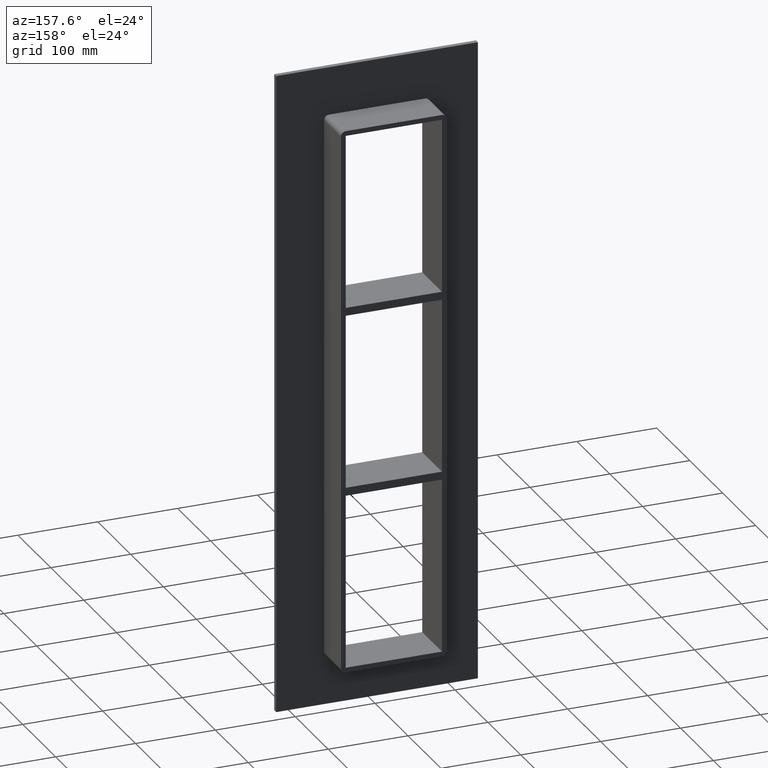
[diagram: clean part render]
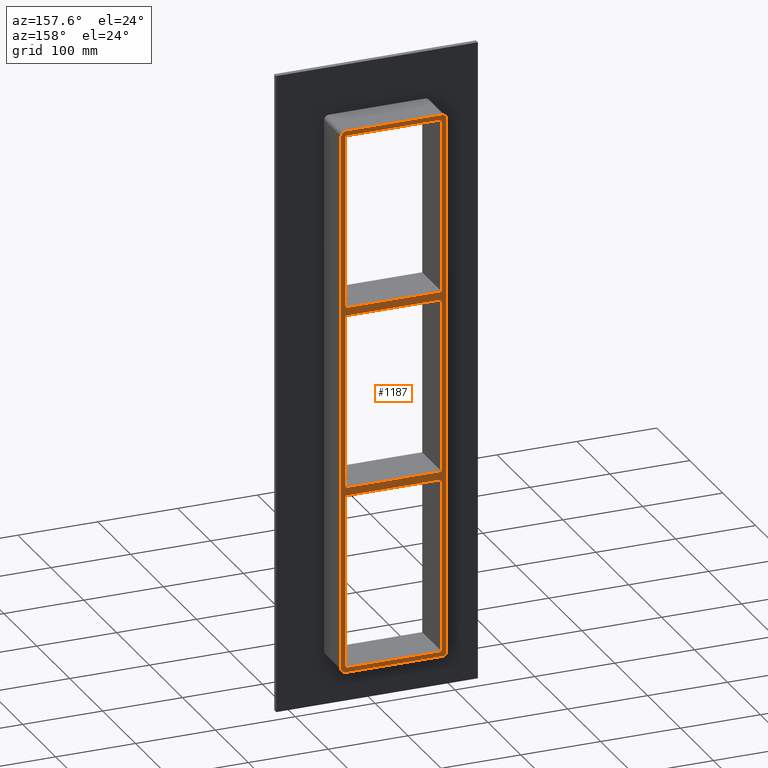
[diagram: same view with one face highlighted and labeled with its STEP entity id]
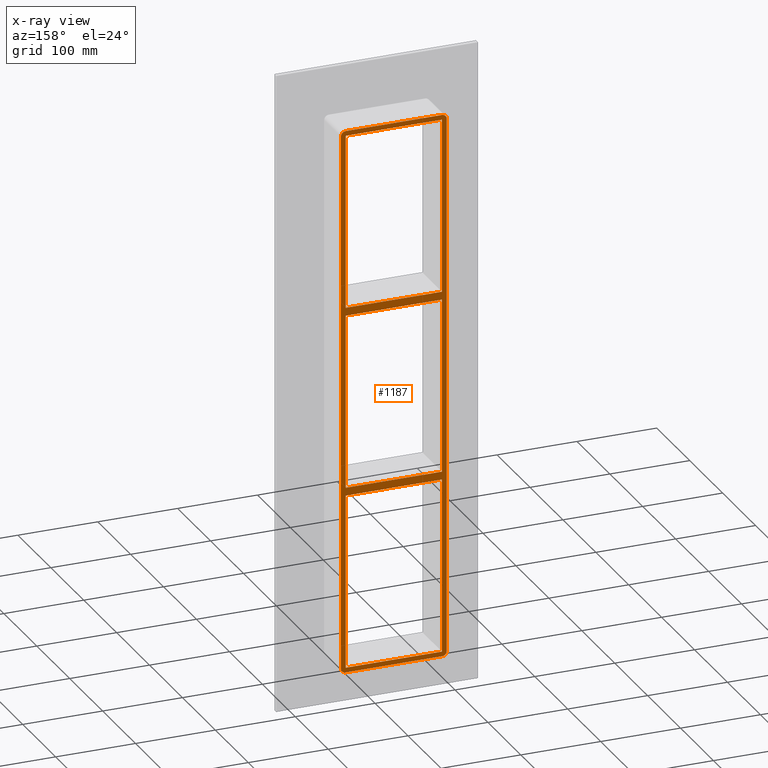
[diagram: x-ray of the same camera — body ghosted, the highlighted face saturated]
A machine part, auxiliary view. The second image highlights one B-rep face of the part: STEP entity #1187.
The next image is the same camera in x-ray: the body ghosted, the highlighted face saturated — about 0% of this face is hidden behind the body in this view.
In plain terms, the highlighted planar face has unit normal (0, 1, 0).
Its self-contained STEP definition (entity closure, byte-faithful):
#83=CARTESIAN_POINT('',(-60.249999999999666,57.0,108.99999999999056));
#84=VERTEX_POINT('',#83);
#91=CARTESIAN_POINT('',(60.249999999996362,57.0,108.99999999999062));
#92=VERTEX_POINT('',#91);
#93=CARTESIAN_POINT('',(60.249999999996362,57.0,108.99999999999062));
#94=DIRECTION('',(-1.0,0.0,0.0));
#95=VECTOR('',#94,120.49999999999602);
#96=LINE('',#93,#95);
#97=EDGE_CURVE('',#92,#84,#96,.T.);
#123=CARTESIAN_POINT('',(60.249999999999879,57.0,118.99999999999994));
#124=VERTEX_POINT('',#123);
#131=CARTESIAN_POINT('',(-60.249999999999666,57.0,118.99999999999994));
#132=VERTEX_POINT('',#131);
#133=CARTESIAN_POINT('',(-60.249999999999666,57.0,118.99999999999994));
#134=DIRECTION('',(1.0,0.0,0.0));
#135=VECTOR('',#134,120.49999999999955);
#136=LINE('',#133,#135);
#137=EDGE_CURVE('',#132,#124,#136,.T.);
#154=CARTESIAN_POINT('',(-60.249999999999986,57.0,337.0));
#155=VERTEX_POINT('',#154);
#156=CARTESIAN_POINT('',(-60.249999999999993,57.0,337.0));
#157=DIRECTION('',(0.0,0.0,-1.0));
#158=VECTOR('',#157,218.00000000000003);
#159=LINE('',#156,#158);
#160=EDGE_CURVE('',#155,#132,#159,.T.);
#185=CARTESIAN_POINT('',(60.249999999999879,57.0,-109.00000000000006));
#186=VERTEX_POINT('',#185);
#187=CARTESIAN_POINT('',(60.249999999999986,57.0,-109.00000000000006));
#188=DIRECTION('',(0.0,0.0,1.0));
#189=VECTOR('',#188,217.99999999999068);
#190=LINE('',#187,#189);
#191=EDGE_CURVE('',#186,#92,#190,.T.);
#224=CARTESIAN_POINT('',(60.249999999999986,57.0,337.0));
#225=VERTEX_POINT('',#224);
#232=CARTESIAN_POINT('',(60.249999999999986,57.0,118.99999999999996));
#233=DIRECTION('',(0.0,0.0,1.0));
#234=VECTOR('',#233,218.00000000000006);
#235=LINE('',#232,#234);
#236=EDGE_CURVE('',#124,#225,#235,.T.);
#256=CARTESIAN_POINT('',(-60.249999999999666,57.0,-119.00000000000944));
#257=VERTEX_POINT('',#256);
#264=CARTESIAN_POINT('',(60.249999999996362,57.0,-119.00000000000938));
#265=VERTEX_POINT('',#264);
#266=CARTESIAN_POINT('',(60.249999999996362,57.0,-119.00000000000938));
#267=DIRECTION('',(-1.0,0.0,0.0));
#268=VECTOR('',#267,120.49999999999602);
#269=LINE('',#266,#268);
#270=EDGE_CURVE('',#265,#257,#269,.T.);
#295=CARTESIAN_POINT('',(-60.249999999999666,57.0,-109.00000000000006));
#296=VERTEX_POINT('',#295);
#297=CARTESIAN_POINT('',(-60.249999999999666,57.0,-109.00000000000006));
#298=DIRECTION('',(1.0,0.0,0.0));
#299=VECTOR('',#298,120.49999999999955);
#300=LINE('',#297,#299);
#301=EDGE_CURVE('',#296,#186,#300,.T.);
#325=CARTESIAN_POINT('',(-60.249999999999993,57.0,108.99999999999059));
#326=DIRECTION('',(0.0,0.0,-1.0));
#327=VECTOR('',#326,217.99999999999065);
#328=LINE('',#325,#327);
#329=EDGE_CURVE('',#84,#296,#328,.T.);
#340=CARTESIAN_POINT('',(60.249999999999986,57.0,-337.0));
#341=VERTEX_POINT('',#340);
#342=CARTESIAN_POINT('',(60.249999999999986,57.0,-337.00000000000006));
#343=DIRECTION('',(0.0,0.0,1.0));
#344=VECTOR('',#343,217.99999999999068);
#345=LINE('',#342,#344);
#346=EDGE_CURVE('',#341,#265,#345,.T.);
#667=CARTESIAN_POINT('',(-60.249999999999986,57.0,-337.0));
#668=VERTEX_POINT('',#667);
#675=CARTESIAN_POINT('',(-60.249999999999993,57.0,-119.00000000000944));
#676=DIRECTION('',(0.0,0.0,-1.0));
#677=VECTOR('',#676,217.99999999999056);
#678=LINE('',#675,#677);
#679=EDGE_CURVE('',#257,#668,#678,.T.);
#722=CARTESIAN_POINT('',(66.250000000000014,57.0,337.00000000000011));
#723=VERTEX_POINT('',#722);
#730=CARTESIAN_POINT('',(60.249999999999993,57.0,343.00000000000011));
#731=VERTEX_POINT('',#730);
#732=CARTESIAN_POINT('',(60.25,57.0,337.00000000000011));
#733=DIRECTION('',(0.0,-1.0,0.0));
#734=DIRECTION('',(0.707106781186543,0.0,0.707106781186552));
#735=AXIS2_PLACEMENT_3D('',#732,#733,#734);
#736=CIRCLE('',#735,6.0);
#737=EDGE_CURVE('',#723,#731,#736,.T.);
#778=CARTESIAN_POINT('',(66.250000000000014,57.0,-336.99999999999989));
#779=VERTEX_POINT('',#778);
#786=CARTESIAN_POINT('',(66.250000000000014,57.0,337.00000000000011));
#787=DIRECTION('',(0.0,0.0,-1.0));
#788=VECTOR('',#787,674.0);
#789=LINE('',#786,#788);
#790=EDGE_CURVE('',#723,#779,#789,.T.);
#851=CARTESIAN_POINT('',(60.25,57.0,-343.0));
#852=VERTEX_POINT('',#851);
#859=CARTESIAN_POINT('',(60.25,57.0,-336.99999999999989));
#860=DIRECTION('',(0.0,-1.0,0.0));
#861=DIRECTION('',(0.707106781186543,0.0,-0.707106781186552));
#862=AXIS2_PLACEMENT_3D('',#859,#860,#861);
#863=CIRCLE('',#862,6.0);
#864=EDGE_CURVE('',#852,#779,#863,.T.);
#925=CARTESIAN_POINT('',(-60.249999999999979,57.0,-343.0));
#926=VERTEX_POINT('',#925);
#933=CARTESIAN_POINT('',(60.250000000000007,57.0,-343.0));
#934=DIRECTION('',(-1.0,0.0,0.0));
#935=VECTOR('',#934,120.49999999999997);
#936=LINE('',#933,#935);
#937=EDGE_CURVE('',#852,#926,#936,.T.);
#1035=CARTESIAN_POINT('',(-66.249999999999986,57.0,-337.0));
#1036=VERTEX_POINT('',#1035);
#1043=CARTESIAN_POINT('',(-60.249999999999986,57.0,-337.0));
#1044=DIRECTION('',(0.0,-1.0,0.0));
#1045=DIRECTION('',(-0.707106781186552,0.0,-0.707106781186543));
#1046=AXIS2_PLACEMENT_3D('',#1043,#1044,#1045);
#1047=CIRCLE('',#1046,6.000000000000001);
#1048=EDGE_CURVE('',#1036,#926,#1047,.T.);
#1060=CARTESIAN_POINT('',(-66.249999999999986,57.0,337.0));
#1061=VERTEX_POINT('',#1060);
#1068=CARTESIAN_POINT('',(-66.249999999999986,57.0,-337.00000000000006));
#1069=DIRECTION('',(0.0,0.0,1.0));
#1070=VECTOR('',#1069,674.0);
#1071=LINE('',#1068,#1070);
#1072=EDGE_CURVE('',#1036,#1061,#1071,.T.);
#1084=CARTESIAN_POINT('',(-60.249999999999986,57.0,343.00000000000011));
#1085=VERTEX_POINT('',#1084);
#1092=CARTESIAN_POINT('',(-60.249999999999986,57.0,337.0));
#1093=DIRECTION('',(0.0,-1.0,0.0));
#1094=DIRECTION('',(-0.707106781186543,0.0,0.707106781186552));
#1095=AXIS2_PLACEMENT_3D('',#1092,#1093,#1094);
#1096=CIRCLE('',#1095,6.0);
#1097=EDGE_CURVE('',#1085,#1061,#1096,.T.);
#1110=CARTESIAN_POINT('',(-60.249999999999979,57.0,343.00000000000011));
#1111=DIRECTION('',(1.0,0.0,0.0));
#1112=VECTOR('',#1111,120.49999999999997);
#1113=LINE('',#1110,#1112);
#1114=EDGE_CURVE('',#1085,#731,#1113,.T.);
#1126=CARTESIAN_POINT('',(60.249999999999979,57.0,337.0));
#1127=DIRECTION('',(-1.0,0.0,0.0));
#1128=VECTOR('',#1127,120.49999999999997);
#1129=LINE('',#1126,#1128);
#1130=EDGE_CURVE('',#225,#155,#1129,.T.);
#1145=CARTESIAN_POINT('',(-60.249999999999972,57.0,-337.0));
#1146=DIRECTION('',(1.0,0.0,0.0));
#1147=VECTOR('',#1146,120.49999999999996);
#1148=LINE('',#1145,#1147);
#1149=EDGE_CURVE('',#668,#341,#1148,.T.);
#1154=CARTESIAN_POINT('',(5.927519E-015,57.0,7.292070E-014));
#1155=DIRECTION('',(0.0,1.0,0.0));
#1156=DIRECTION('',(0.0,0.0,1.0));
#1157=AXIS2_PLACEMENT_3D('',#1154,#1155,#1156);
#1158=PLANE('',#1157);
#1159=ORIENTED_EDGE('',*,*,#864,.F.);
#1160=ORIENTED_EDGE('',*,*,#937,.T.);
#1161=ORIENTED_EDGE('',*,*,#1048,.F.);
#1162=ORIENTED_EDGE('',*,*,#1072,.T.);
#1163=ORIENTED_EDGE('',*,*,#1097,.F.);
#1164=ORIENTED_EDGE('',*,*,#1114,.T.);
#1165=ORIENTED_EDGE('',*,*,#737,.F.);
#1166=ORIENTED_EDGE('',*,*,#790,.T.);
#1167=EDGE_LOOP('',(#1159,#1160,#1161,#1162,#1163,#1164,#1165,#1166));
#1168=FACE_OUTER_BOUND('',#1167,.T.);
#1169=ORIENTED_EDGE('',*,*,#329,.T.);
#1170=ORIENTED_EDGE('',*,*,#301,.T.);
#1171=ORIENTED_EDGE('',*,*,#191,.T.);
#1172=ORIENTED_EDGE('',*,*,#97,.T.);
#1173=EDGE_LOOP('',(#1169,#1170,#1171,#1172));
#1174=FACE_BOUND('',#1173,.T.);
#1175=ORIENTED_EDGE('',*,*,#679,.T.);
#1176=ORIENTED_EDGE('',*,*,#1149,.T.);
#1177=ORIENTED_EDGE('',*,*,#346,.T.);
#1178=ORIENTED_EDGE('',*,*,#270,.T.);
#1179=EDGE_LOOP('',(#1175,#1176,#1177,#1178));
#1180=FACE_BOUND('',#1179,.T.);
#1181=ORIENTED_EDGE('',*,*,#137,.T.);
#1182=ORIENTED_EDGE('',*,*,#236,.T.);
#1183=ORIENTED_EDGE('',*,*,#1130,.T.);
#1184=ORIENTED_EDGE('',*,*,#160,.T.);
#1185=EDGE_LOOP('',(#1181,#1182,#1183,#1184));
#1186=FACE_BOUND('',#1185,.T.);
#1187=ADVANCED_FACE('',(#1168,#1174,#1180,#1186),#1158,.T.);